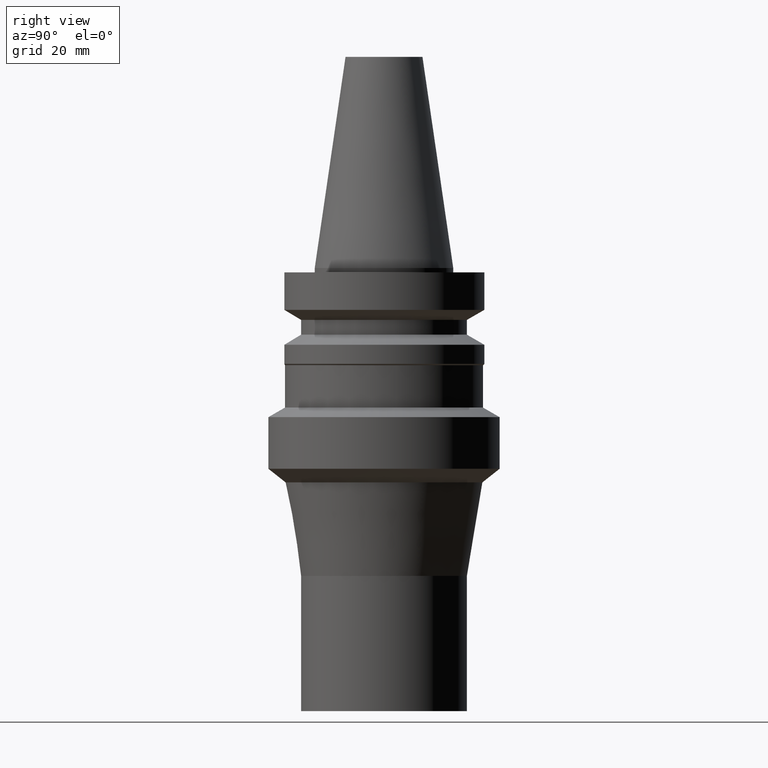
[diagram: clean part render]
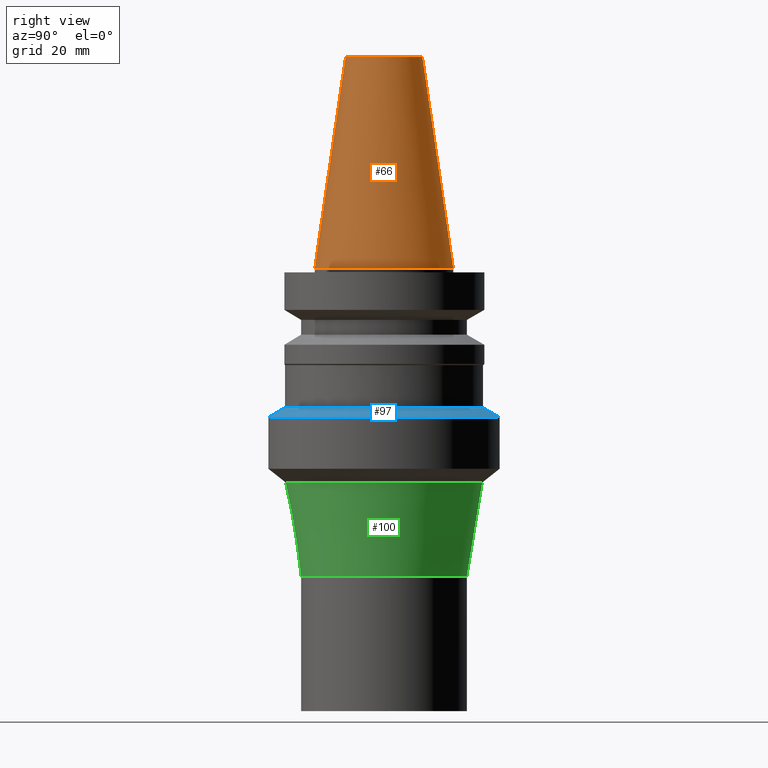
[diagram: same view with three faces highlighted in distinct colors, each labeled with its STEP entity id]
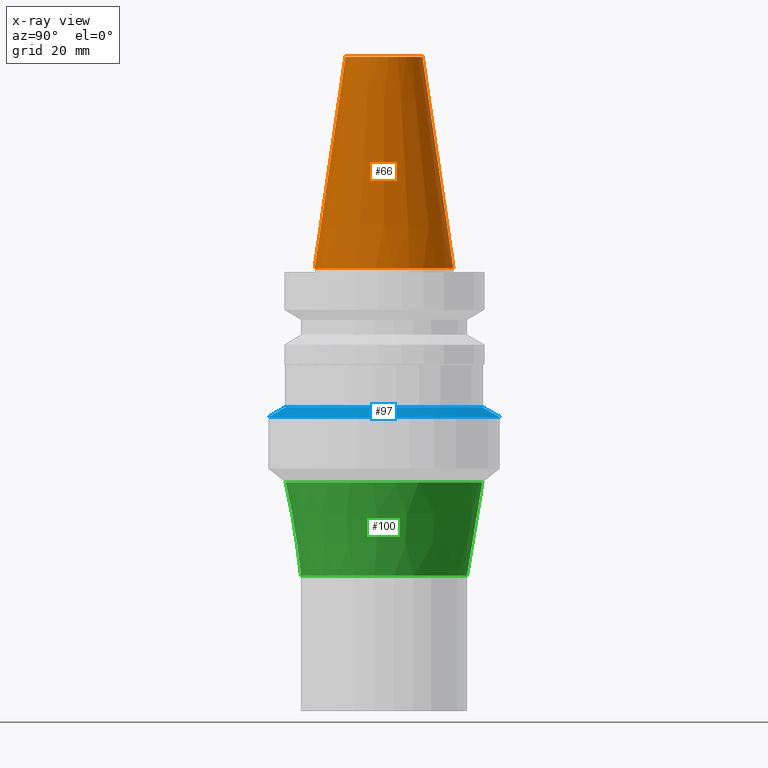
[diagram: x-ray of the same camera — body ghosted, the three highlighted faces saturated]
A machine part, right view with three faces highlighted in distinct colors.
The next image is the same camera in x-ray (body ghosted, the three faces saturated) — at least one of them is partly hidden behind the body in this view.
Their STEP definitions:

[orange] entity #66 — the highlighted conical surface has half-angle 8.297 deg.
#66=ADVANCED_FACE('Unnamed[1]',(#172,#173),#174,.T.);
#113=EDGE_CURVE('Unnamed[1]',#246,#246,#247,.T.);
#115=EDGE_CURVE('Unnamed[1]',#249,#249,#250,.T.);
#172=FACE_BOUND('',#316,.T.);
#173=FACE_BOUND('',#317,.T.);
#174=CONICAL_SURFACE('',#318,12.3457500009933,0.144815870013618);
#246=VERTEX_POINT('',#407);
#247=CIRCLE('',#408,15.875);
#249=VERTEX_POINT('',#411);
#250=CIRCLE('',#412,8.81650000198669);
#316=EDGE_LOOP('',(#480));
#317=EDGE_LOOP('',(#481));
#318=AXIS2_PLACEMENT_3D('',#482,#483,#484);
#407=CARTESIAN_POINT('',(-1.95674482349743E-031,15.875,1.94412679364642E-015));
#408=AXIS2_PLACEMENT_3D('',#563,#564,#565);
#411=CARTESIAN_POINT('',(-2.96364525393659E-015,8.81650000198669,48.4));
#412=AXIS2_PLACEMENT_3D('',#566,#567,#568);
#480=ORIENTED_EDGE('',*,*,#113,.F.);
#481=ORIENTED_EDGE('',*,*,#115,.T.);
#482=CARTESIAN_POINT('',(-1.4818226269683E-015,-2.96364525393659E-015,24.2));
#483=DIRECTION('',(6.12323399573677E-017,1.22464679914735E-016,-1.0));
#484=DIRECTION('',(-1.23259516440783E-032,1.0,1.22464679914735E-016));
#563=CARTESIAN_POINT('',(0.0,0.0,0.0));
#564=DIRECTION('',(6.12323399573677E-017,1.22464679914735E-016,-1.0));
#565=DIRECTION('',(-1.23259516440783E-032,1.0,1.22464679914735E-016));
#566=CARTESIAN_POINT('',(-2.96364525393659E-015,-5.92729050787319E-015,48.4));
#567=DIRECTION('',(6.12323399573677E-017,1.22464679914735E-016,-1.0));
#568=DIRECTION('',(-1.23259516440783E-032,1.0,1.22464679914735E-016));

[blue] entity #97 — the highlighted conical surface has half-angle 60 deg.
#68=EDGE_CURVE('Unnamed[1]',#176,#176,#177,.T.);
#97=ADVANCED_FACE('Unnamed[1]',(#221,#222),#223,.T.);
#130=EDGE_CURVE('Unnamed[1]',#272,#272,#273,.T.);
#176=VERTEX_POINT('',#321);
#177=CIRCLE('',#322,22.7000000000043);
#221=FACE_BOUND('',#377,.T.);
#222=FACE_BOUND('',#378,.T.);
#223=CONICAL_SURFACE('',#379,24.6000000000021,1.04719755119659);
#272=VERTEX_POINT('',#440);
#273=CIRCLE('',#441,26.4999999999999);
#321=CARTESIAN_POINT('',(1.9594348786359E-015,22.7000000000043,-32.0000000000022));
#322=AXIS2_PLACEMENT_3D('',#485,#486,#487);
#377=EDGE_LOOP('',(#536));
#378=EDGE_LOOP('',(#537));
#379=AXIS2_PLACEMENT_3D('',#538,#539,#540);
#440=CARTESIAN_POINT('',(2.09377440887423E-015,26.4999999999999,-34.1939310229203));
#441=AXIS2_PLACEMENT_3D('',#592,#593,#594);
#485=CARTESIAN_POINT('',(1.9594348786359E-015,3.91886975727179E-015,-32.0000000000022));
#486=DIRECTION('',(6.12323399573677E-017,1.22464679914735E-016,-1.0));
#487=DIRECTION('',(-1.23259516440783E-032,1.0,1.22464679914735E-016));
#536=ORIENTED_EDGE('',*,*,#130,.F.);
#537=ORIENTED_EDGE('',*,*,#68,.T.);
#538=CARTESIAN_POINT('',(2.02660464375507E-015,4.05320928751013E-015,-33.0969655114612));
#539=DIRECTION('',(6.12323399573677E-017,1.22464679914735E-016,-1.0));
#540=DIRECTION('',(-1.23259516440783E-032,1.0,1.22464679914735E-016));
#592=CARTESIAN_POINT('',(2.09377440887424E-015,4.18754881774847E-015,-34.1939310229203));
#593=DIRECTION('',(6.12323399573677E-017,1.22464679914735E-016,-1.0));
#594=DIRECTION('',(-1.23259516440783E-032,1.0,1.22464679914735E-016));

[green] entity #100 — the highlighted conical surface has half-angle 9.392 deg.
#63=EDGE_CURVE('Unnamed[1]',#168,#168,#169,.T.);
#100=ADVANCED_FACE('Unnamed[1]',(#226,#227),#228,.T.);
#108=EDGE_CURVE('Unnamed[1]',#240,#240,#241,.T.);
#168=VERTEX_POINT('',#311);
#169=CIRCLE('',#312,19.0000000000001);
#226=FACE_BOUND('',#383,.T.);
#227=FACE_BOUND('',#384,.T.);
#228=CONICAL_SURFACE('',#385,20.7728492706497,0.163916079430991);
#240=VERTEX_POINT('',#400);
#241=CIRCLE('',#401,22.5456985412993);
#311=CARTESIAN_POINT('',(4.32300320099011E-015,19.0000000000001,-70.5999999999992));
#312=AXIS2_PLACEMENT_3D('',#476,#477,#478);
#383=EDGE_LOOP('',(#542));
#384=EDGE_LOOP('',(#543));
#385=AXIS2_PLACEMENT_3D('',#544,#545,#546);
#400=CARTESIAN_POINT('',(3.0103593006901E-015,22.5456985412993,-49.1628982786879));
#401=AXIS2_PLACEMENT_3D('',#559,#560,#561);
#476=CARTESIAN_POINT('',(4.32300320099011E-015,8.64600640198022E-015,-70.5999999999992));
#477=DIRECTION('',(6.12323399573677E-017,1.22464679914735E-016,-1.0));
#478=DIRECTION('',(-1.23259516440783E-032,1.0,1.22464679914735E-016));
#542=ORIENTED_EDGE('',*,*,#63,.F.);
#543=ORIENTED_EDGE('',*,*,#108,.T.);
#544=CARTESIAN_POINT('',(3.66668125084011E-015,7.33336250168021E-015,-59.8814491393436));
#545=DIRECTION('',(-6.12323399573677E-017,-1.22464679914735E-016,1.0));
#546=DIRECTION('',(-1.23259516440783E-032,1.0,1.22464679914735E-016));
#559=CARTESIAN_POINT('',(3.0103593006901E-015,6.02071860138021E-015,-49.1628982786879));
#560=DIRECTION('',(6.12323399573677E-017,1.22464679914735E-016,-1.0));
#561=DIRECTION('',(-1.23259516440783E-032,1.0,1.22464679914735E-016));